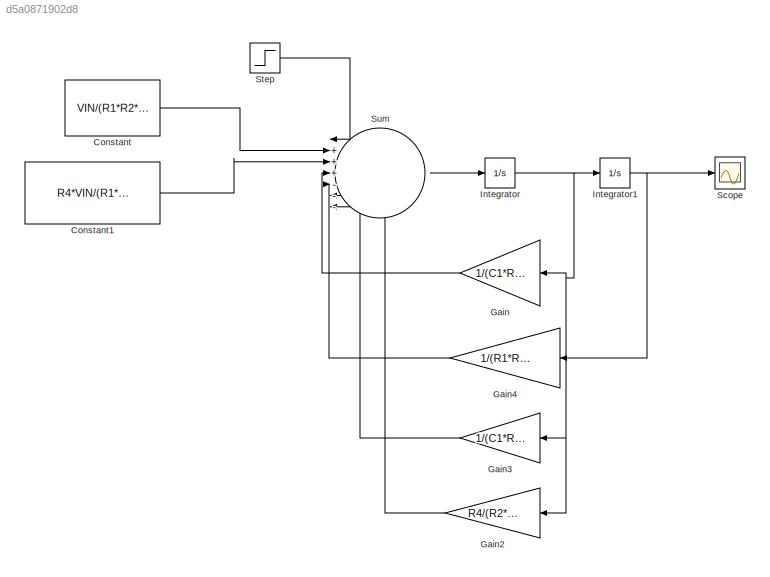
MODEL slx_d5a0871902d8
KIND model
CONFIG AbsTol = auto
CONFIG EnableMultiTasking = off
CONFIG FixedStep = auto
CONFIG MaxStep = auto
CONFIG MinStep = auto
CONFIG RelTol = 1e-3
CONFIG SampleTimeConstraint = Unconstrained
CONFIG SolverName = VariableStepAuto
CONFIG StartTime = 0.0
CONFIG StopTime = 0.003
BLOCK [Constant] Constant
  Value = VIN/(R1*R2*C1*C2)
BLOCK [Constant] Constant1
  Value = R4*VIN/(R1*R2*R3*C1*C2)
BLOCK [Gain] Gain
  Gain = 1/(C1*R1)
  NameLocation = top
BLOCK [Gain] Gain2
  Gain = R4/(R2*C2*R3)
  NameLocation = top
BLOCK [Gain] Gain3
  Gain = 1/(C1*R2)
  NameLocation = top
BLOCK [Gain] Gain4
  Gain = 1/(R1*R2*C1*C2)
  NameLocation = top
BLOCK [Integrator] Integrator
  Ports = [1, 1]
BLOCK [Integrator] Integrator1
  Ports = [1, 1]
BLOCK [Scope] Scope
  Floating = off
  NumInputPorts = 1
  Ports = [1]
  ScopeSpecificationString = Simulink.scopes.TimeScopeBlockCfg('CurrentConfiguration', extmgr.ConfigurationSet(extmgr.Configuration('Core','General UI',true),extmgr.Configuration('Core','Source UI',true),extmgr.Configuration('Sources','WiredSimulink',true),extmgr.Configuration('Visuals','Time Domain',true,'SerializedDisplays',{struct('MinYLimReal','-0.45115','MaxYLimReal','4.06035','YLabelReal','','MinYLimMag','0.00000','MaxY...<+1364ch>
BLOCK [Step] Step
  SampleTime = 0
BLOCK [Sum] Sum
  Inputs = |+++---+
  Ports = [7, 1]
LINE Constant1:1 -> Sum:3
LINE Constant:1 -> Sum:2
LINE Gain2:1 -> Sum:7
LINE Gain3:1 -> Sum:6
LINE Gain4:1 -> Sum:5
LINE Gain:1 -> Sum:4
NET Integrator1:1 -> Gain4:1, Scope:1
NET Integrator:1 -> Gain2:1, Gain3:1, Gain:1, Integrator1:1
LINE Step:1 -> Sum:1
LINE Sum:1 -> Integrator:1
note: NET lines group one-source signal fan-out (src -> all destinations, sorted); 1:1 wires keep LINE
